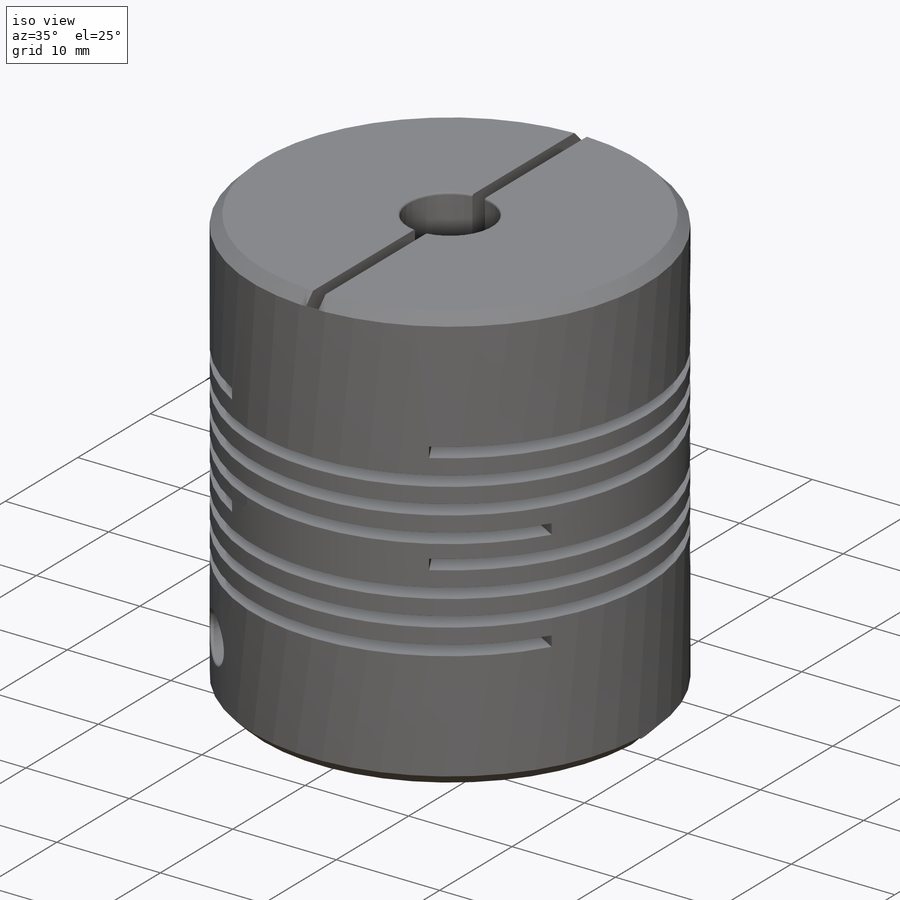
[diagram: iso view]
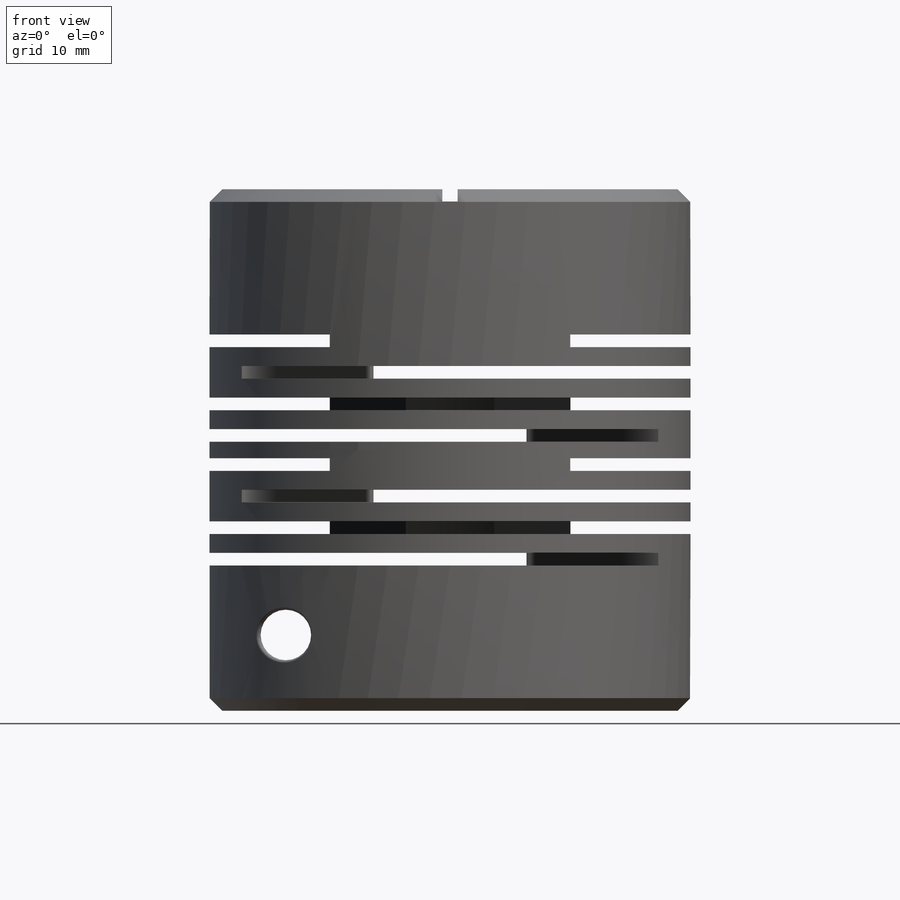
[diagram: front view]
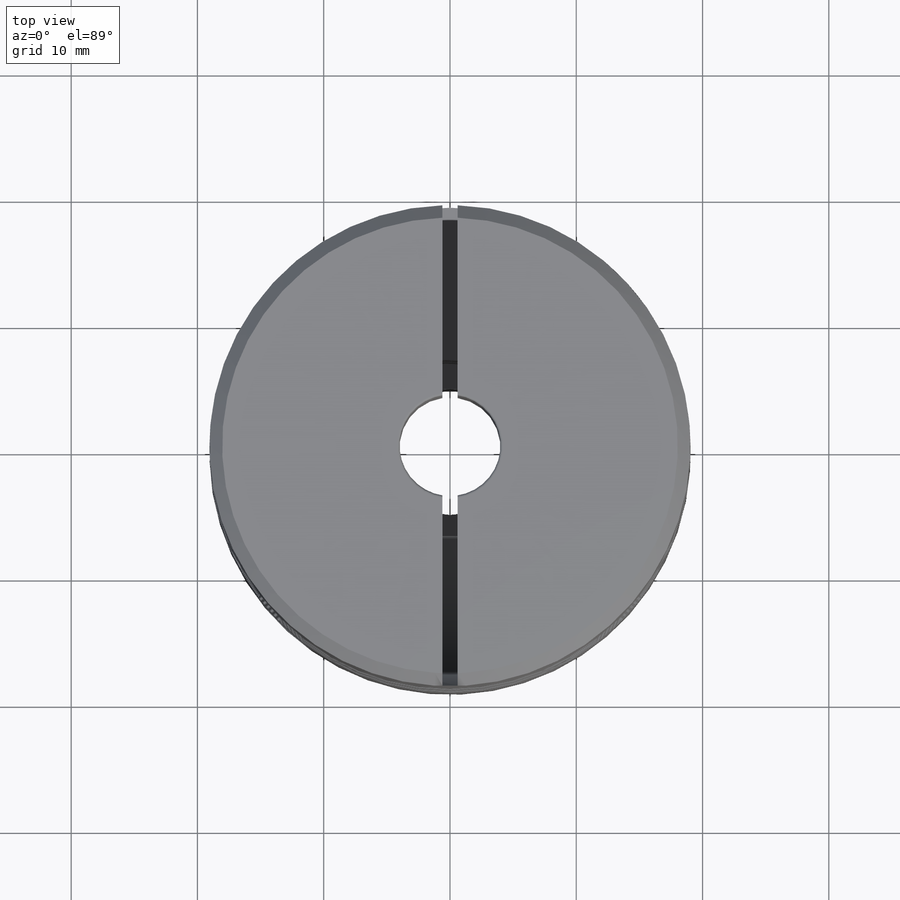
[diagram: top view]
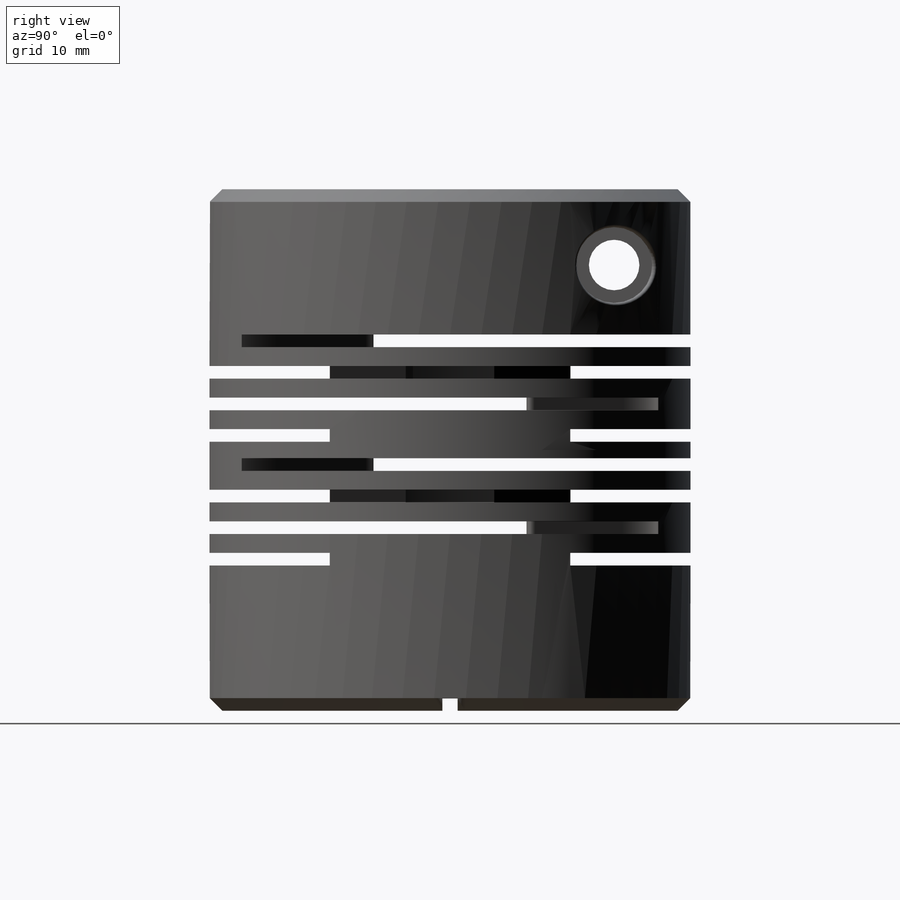
[diagram: right view]
SOLIDWORKS PART (.sldprt)
format: sldprt  version: not decoded by parser v0  size: 584,192 bytes
history: native  units: mm
features: sketch x12, cut_extrude x6, cut_revolve x4, plane x2, material x1, revolve x1, chamfer x1, pattern_linear x1, fillet x1 (+11 scaffold rows collapsed)
feature tree (40):
  scaffold x11  (default folders/planes/origin — collapsed)
  material  "1060 Alloy"
  sketch  "Sketch1"  dims[D1=41.3mm D2=19.05mm D3=4.0mm D4=5.0mm D5=7.0mm D6=11.5mm]
  revolve  "Revolve1"  Angle=360deg
  sketch  "Sketch2"  dims[D1=11.5mm]
  cut_extrude  "Cut-Extrude1"  Depth=0.6mm
  chamfer  "Chamfer1"  Distance=1mm Angle=45deg
  sketch  "Sketch12"  dims[D1=11.5mm D2=38.1mm]
  sketch  "Sketch3"  dims[D1=41.3mm]
  sketch  "Sketch6"  dims[D1=11.5mm D2=12.05mm D3=1.0mm]
  cut_revolve  "Cut-Revolve1"  Angle=240deg
  sketch  "Sketch8"  dims[D1=14.0mm D2=12.05mm D3=1.0mm]
  cut_revolve  "Cut-Revolve2"  Angle=240deg
  sketch  "Sketch9"  dims[D1=16.5mm D2=12.05mm D3=1.0mm]
  cut_revolve  "Cut-Revolve3"  Angle=60deg
  sketch  "Sketch11"  dims[D1=19.0mm D2=12.05mm D3=1.0mm]
  cut_revolve  "Cut-Revolve4"  Angle=240deg
  pattern_linear  "LPattern1"  Count1=2 Count2=1 Spacing1=9.8mm Spacing2=10mm
  cut_extrude  "Cut-Extrude2"  Depth=0.6mm
  sketch  "Sketch13"  dims[c1.D2=4.0mm c1.D3=4.0mm c1.D4=4.0mm c1.D6=4.0mm c1.D1=13.0mm c2.D3=6.25mm c2.D1=6.0mm c2.D2=13.0mm c2.D5=6.0mm c3.D1=6.0mm c3.D5=13.0mm]
  cut_extrude  "Cut-Extrude3"  [1 undecoded]
  sketch  "Sketch14"  dims[D2=4.0mm D1=13.0mm D3=6.0mm]
  cut_extrude  "Cut-Extrude4"  [1 undecoded]
  plane  "Plane1"  Offset=19.05mm
  sketch  "Sketch16"  dims[D1=6.0mm]
  plane  "Plane2"  Offset=19.05mm
  sketch  "Sketch17"  dims[D1=6.0mm]
  cut_extrude  "Cut-Extrude8"  Depth=12mm
  cut_extrude  "Cut-Extrude9"  Depth=12mm
  fillet  "Fillet2"  Radius=0.2mm
decode coverage: 24 of 26 modeling features carry decoded parameters
note: 2 parameter values undecoded
note: suppression state not decoded; provenance and decode notes live in map.json
